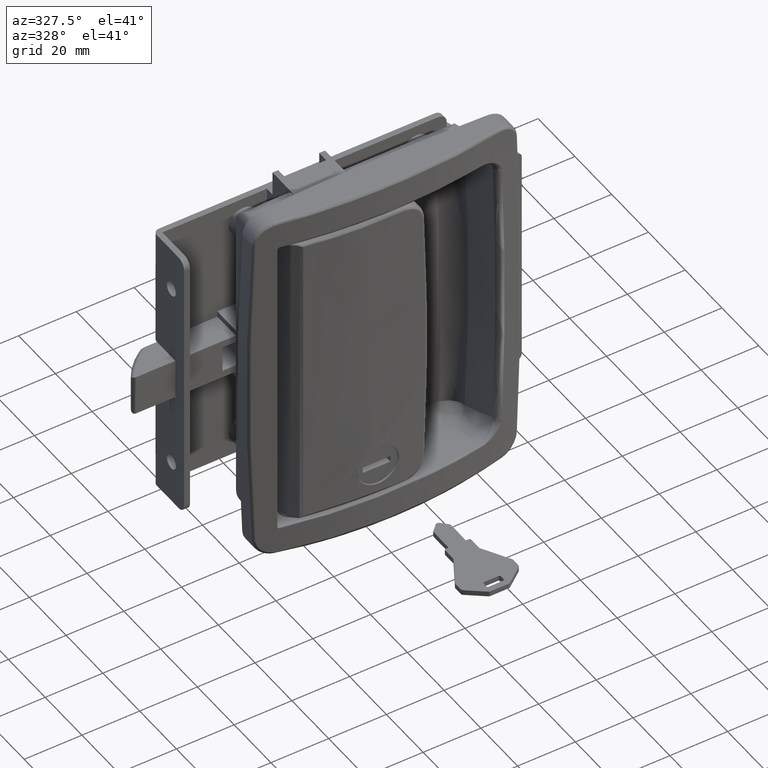
[diagram: clean part render]
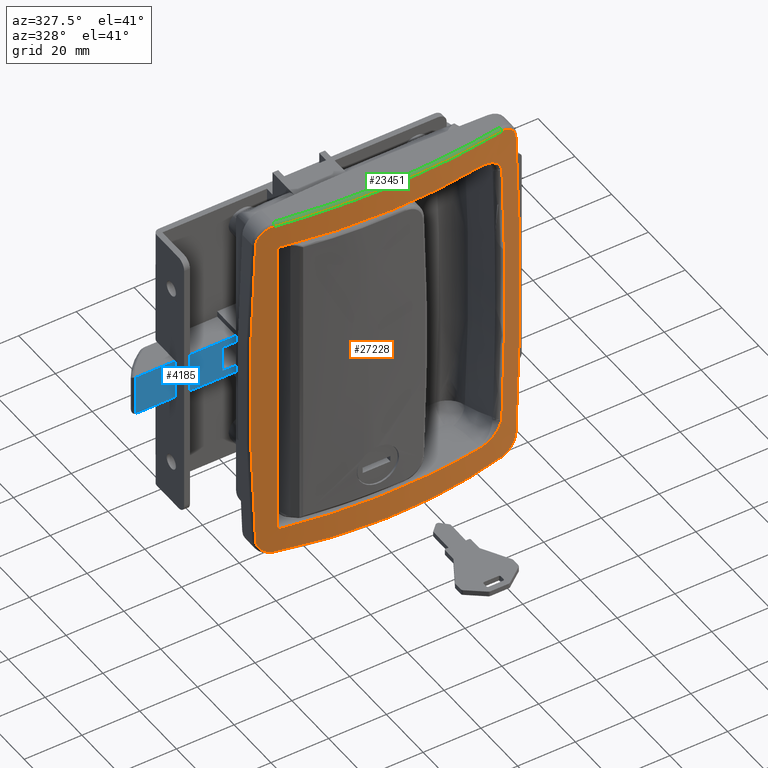
[diagram: same view with three faces highlighted in distinct colors, each labeled with its STEP entity id]
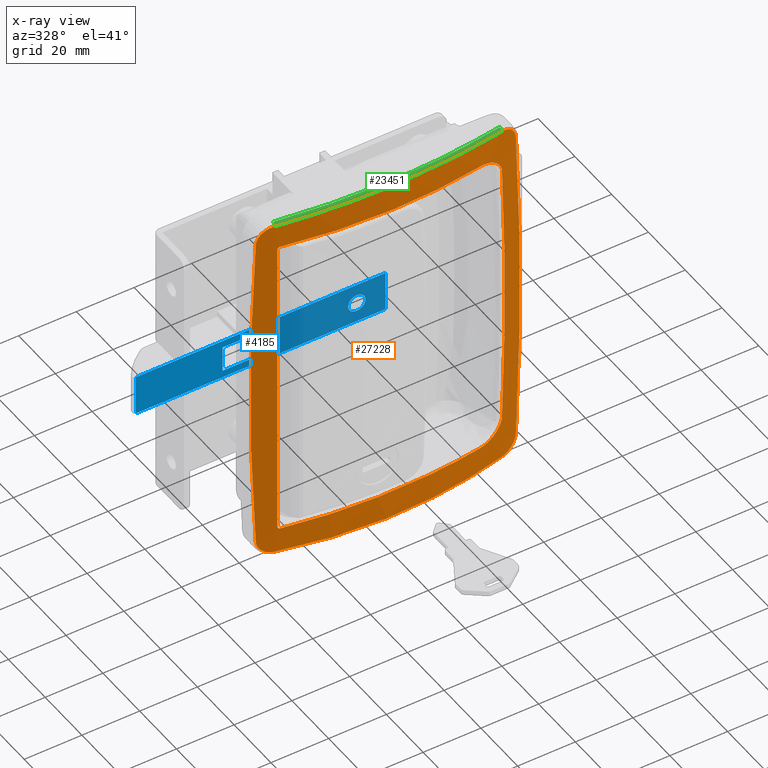
[diagram: x-ray of the same camera — body ghosted, the three highlighted faces saturated]
A machine part, auxiliary view with three faces highlighted in distinct colors.
The next image is the same camera in x-ray (body ghosted, the three faces saturated) — at least one of them is partly hidden behind the body in this view.
Their STEP definitions:

[orange] entity #27228 — the highlighted face is a freeform B-spline surface patch.
#21315=CARTESIAN_POINT('',(9.599075922486570,-6.702029921154320,-54.500000000000902));
#21316=VERTEX_POINT('',#21315);
#21317=CARTESIAN_POINT('',(8.999999999988750,-6.579965081214199,-53.583589882531903));
#21318=VERTEX_POINT('',#21317);
#21319=CARTESIAN_POINT('',(9.599075922486570,-6.702029921154320,-54.500000000000902));
#21320=CARTESIAN_POINT('',(9.566692796400959,-6.695476421284351,-54.475411583856307));
#21321=CARTESIAN_POINT('',(9.499483996925358,-6.681875113685147,-54.424380129431377));
#21322=CARTESIAN_POINT('',(9.404792877149061,-6.662649505394791,-54.332439576654721));
#21323=CARTESIAN_POINT('',(9.310166908435646,-6.643394465819999,-54.226429793515763));
#21324=CARTESIAN_POINT('',(9.214204128523051,-6.623818153537632,-54.102935523686106));
#21325=CARTESIAN_POINT('',(9.124598454653725,-6.605492644829222,-53.970241880236948));
#21326=CARTESIAN_POINT('',(9.054796662721941,-6.591189979142562,-53.833834482816357));
#21327=CARTESIAN_POINT('',(9.009322687428956,-6.581863360071954,-53.706281123828767));
#21328=CARTESIAN_POINT('',(9.002975536823840,-6.580570957867338,-53.622749439275943));
#21329=CARTESIAN_POINT('',(8.999999999988750,-6.579965081214199,-53.583589882531903));
#21330=B_SPLINE_CURVE_WITH_KNOTS('',3,(#21319,#21320,#21321,#21322,#21323,#21324,#21325,#21326,#21327,#21328,#21329),.UNSPECIFIED.,.F.,.U.,(4,1,1,1,1,1,1,1,4),(0.000000050481181,0.109058478817373,0.226342812403613,0.352712374429354,0.488854600462004,0.643843752490214,0.778844778220197,0.896322688775079,1.0),.UNSPECIFIED.);
#21331=EDGE_CURVE('',#21316,#21318,#21330,.T.);
#21516=CARTESIAN_POINT('',(8.999999999988750,-6.579965081214199,53.583589882528287));
#21517=VERTEX_POINT('',#21516);
#21518=CARTESIAN_POINT('',(9.599075922485369,-6.702029921151540,54.500000000000902));
#21519=VERTEX_POINT('',#21518);
#21520=CARTESIAN_POINT('',(8.999999999988750,-6.579965081214199,53.583589882528287));
#21521=CARTESIAN_POINT('',(9.001266810657866,-6.580221591940397,53.609230082111957));
#21522=CARTESIAN_POINT('',(9.003901980963725,-6.580755175581020,53.662565828507681));
#21523=CARTESIAN_POINT('',(9.023668971327792,-6.584806638629321,53.744079223000163));
#21524=CARTESIAN_POINT('',(9.054566728948615,-6.591141616838542,53.829640212636207));
#21525=CARTESIAN_POINT('',(9.097956137490129,-6.600033695094533,53.919296578469933));
#21526=CARTESIAN_POINT('',(9.153343960237335,-6.611372599447230,54.013143145252542));
#21527=CARTESIAN_POINT('',(9.234700174660173,-6.628003394400525,54.130848263186230));
#21528=CARTESIAN_POINT('',(9.339064712893963,-6.649284187424210,54.261888982053087));
#21529=CARTESIAN_POINT('',(9.464541667633382,-6.674796151140972,54.395485508702130));
#21530=CARTESIAN_POINT('',(9.555720059208518,-6.693253393494603,54.466318497744297));
#21531=CARTESIAN_POINT('',(9.599075922485369,-6.702029921151540,54.500000000000902));
#21532=B_SPLINE_CURVE_WITH_KNOTS('',3,(#21520,#21521,#21522,#21523,#21524,#21525,#21526,#21527,#21528,#21529,#21530,#21531),.UNSPECIFIED.,.F.,.U.,(4,1,1,1,1,1,1,1,1,4),(0.0,0.067887309138870,0.141216541310648,0.221320209355252,0.309223285366422,0.405702483639385,0.511345526070646,0.690605453808746,0.852881040407294,0.999999941705247),.UNSPECIFIED.);
#21533=EDGE_CURVE('',#21517,#21519,#21532,.T.);
#21660=CARTESIAN_POINT('',(78.269204066006097,-8.005596772646090,-54.500000000004398));
#21661=VERTEX_POINT('',#21660);
#21662=CARTESIAN_POINT('',(78.269204066006097,-8.005596772646090,-54.500000000004398));
#21663=CARTESIAN_POINT('',(71.169617046083673,-9.164456456189978,-54.500000000004079));
#21664=CARTESIAN_POINT('',(57.555875984851554,-10.602937384950851,-54.500000000003297));
#21665=CARTESIAN_POINT('',(34.506827224920620,-10.556137995763279,-54.500000000002167));
#21666=CARTESIAN_POINT('',(18.764673808468181,-8.558058871130950,-54.500000000001357));
#21667=CARTESIAN_POINT('',(9.599075922486570,-6.702029921154320,-54.500000000000902));
#21668=B_SPLINE_CURVE_WITH_KNOTS('',3,(#21662,#21663,#21664,#21665,#21666,#21667),.UNSPECIFIED.,.F.,.U.,(4,1,1,4),(3.980361E-009,21.580622754430149,41.003167980612282,69.057978517330241),.UNSPECIFIED.);
#21669=EDGE_CURVE('',#21661,#21316,#21668,.T.);
#21812=CARTESIAN_POINT('',(86.913000136790401,-6.389771469008990,-48.486246136743503));
#21813=VERTEX_POINT('',#21812);
#21814=CARTESIAN_POINT('',(86.913000136790401,-6.389771469008990,-48.486246136743503));
#21815=CARTESIAN_POINT('',(86.812504066507898,-6.410918498729897,-48.753279671610713));
#21816=CARTESIAN_POINT('',(86.634906128188220,-6.448289799592488,-49.225184878865250));
#21817=CARTESIAN_POINT('',(86.317330621516390,-6.514481829233340,-49.910956414097917));
#21818=CARTESIAN_POINT('',(85.945449519042384,-6.591344250926034,-50.530824343260029));
#21819=CARTESIAN_POINT('',(85.368872955608552,-6.709156392245324,-51.328776034403262));
#21820=CARTESIAN_POINT('',(84.531033032164245,-6.877315631739130,-52.218986659064882));
#21821=CARTESIAN_POINT('',(83.396023617967245,-7.098263442214736,-53.073477069571830));
#21822=CARTESIAN_POINT('',(82.162642814561579,-7.330171280076550,-53.729765243865842));
#21823=CARTESIAN_POINT('',(81.026822836001656,-7.535893966258069,-54.129573540935169));
#21824=CARTESIAN_POINT('',(80.012887499467652,-7.713343454385508,-54.358005303553291));
#21825=CARTESIAN_POINT('',(79.145842158132581,-7.861307618084020,-54.478069585884477));
#21826=CARTESIAN_POINT('',(78.562153889906540,-7.957379061370139,-54.492671421638640));
#21827=CARTESIAN_POINT('',(78.269204066006097,-8.005596772646090,-54.500000000004398));
#21828=B_SPLINE_CURVE_WITH_KNOTS('',3,(#21814,#21815,#21816,#21817,#21818,#21819,#21820,#21821,#21822,#21823,#21824,#21825,#21826,#21827),.UNSPECIFIED.,.F.,.U.,(4,1,1,1,1,1,1,1,1,1,1,4),(0.0,0.075408068428579,0.133262134585326,0.199719018594853,0.266687156634076,0.394405440116059,0.523308569708306,0.644028107572122,0.766438393185749,0.844104949045801,0.921757160096916,1.0),.UNSPECIFIED.);
#21829=EDGE_CURVE('',#21813,#21661,#21828,.T.);
#21879=CARTESIAN_POINT('',(86.913023108328701,-6.389840579438331,48.486076372476198));
#21880=VERTEX_POINT('',#21879);
#21933=CARTESIAN_POINT('',(86.913023108328701,-6.389840579438331,48.486076372476198));
#21934=CARTESIAN_POINT('',(86.983031256800231,-6.375052075943834,46.946898579708581));
#21935=CARTESIAN_POINT('',(87.123033796963725,-6.345477974933458,43.868845446531552));
#21936=CARTESIAN_POINT('',(87.306938744599620,-6.306361321573832,39.251011629688250));
#21937=CARTESIAN_POINT('',(87.471723997029883,-6.271169693701984,34.633249690084767));
#21938=CARTESIAN_POINT('',(87.615529008390126,-6.240328501856268,30.015468411828760));
#21939=CARTESIAN_POINT('',(87.738865356182174,-6.213785867121910,25.397692237409931));
#21940=CARTESIAN_POINT('',(87.841607405666807,-6.191609145401666,20.779914626427530));
#21941=CARTESIAN_POINT('',(87.923798435353135,-6.173825133935552,16.162137338543442));
#21942=CARTESIAN_POINT('',(87.985434657309284,-6.160462884049864,11.544359909837450));
#21943=CARTESIAN_POINT('',(88.026523057046148,-6.151542236127284,6.926582472176312));
#21944=CARTESIAN_POINT('',(88.047065887769449,-6.147076893423654,2.308804997608575));
#21945=CARTESIAN_POINT('',(88.047064794320406,-6.147073604739222,-2.308972498233349));
#21946=CARTESIAN_POINT('',(88.026519776671094,-6.151532369949367,-6.926750014240376));
#21947=CARTESIAN_POINT('',(87.985429189927601,-6.160446440003634,-11.544527534776501));
#21948=CARTESIAN_POINT('',(87.923790780828568,-6.173802111396670,-16.162305087795691));
#21949=CARTESIAN_POINT('',(87.841597563811931,-6.191579543495204,-20.780082541433099));
#21950=CARTESIAN_POINT('',(87.738853326753784,-6.213749684724121,-25.397860359611720));
#21951=CARTESIAN_POINT('',(87.615514791097809,-6.240285737589986,-30.015636782656848));
#21952=CARTESIAN_POINT('',(87.471707591510821,-6.271120345951877,-34.633418350995171));
#21953=CARTESIAN_POINT('',(87.306920150513207,-6.306305388429468,-39.251180622056303));
#21954=CARTESIAN_POINT('',(87.123013013678062,-6.345415454394025,-43.869014812033470));
#21955=CARTESIAN_POINT('',(86.983009014953169,-6.374985162240638,-46.947068206078733));
#21956=CARTESIAN_POINT('',(86.913000136790401,-6.389771469008990,-48.486246136743503));
#21957=B_SPLINE_CURVE_WITH_KNOTS('',3,(#21933,#21934,#21935,#21936,#21937,#21938,#21939,#21940,#21941,#21942,#21943,#21944,#21945,#21946,#21947,#21948,#21949,#21950,#21951,#21952,#21953,#21954,#21955,#21956),.UNSPECIFIED.,.F.,.U.,(4,1,1,1,1,1,1,1,1,1,1,1,1,1,1,1,1,1,1,1,1,4),(0.0,0.047650267292932,0.095291171186925,0.142923695766729,0.190548825636918,0.238167545860451,0.285780841898298,0.333389699548615,0.380995104885082,0.428598044195851,0.476199503922608,0.523800470599006,0.571401930789286,0.619004871027037,0.666610277753814,0.714219137257865,0.761832435612718,0.809451158616276,0.857076291729262,0.904708820014765,0.952349728076834,1.0),.UNSPECIFIED.);
#21958=EDGE_CURVE('',#21880,#21813,#21957,.T.);
#22091=CARTESIAN_POINT('',(78.269565752512392,-8.005537741808510,54.500000000000902));
#22092=VERTEX_POINT('',#22091);
#22093=CARTESIAN_POINT('',(78.269565752512392,-8.005537741808510,54.500000000000902));
#22094=CARTESIAN_POINT('',(78.415851169739810,-7.981562243196351,54.498162573241402));
#22095=CARTESIAN_POINT('',(78.707680419239111,-7.933732788292577,54.494497034444713));
#22096=CARTESIAN_POINT('',(79.143560201483055,-7.860975056955176,54.464688181987128));
#22097=CARTESIAN_POINT('',(79.576243651786314,-7.787799646853626,54.417040890958191));
#22098=CARTESIAN_POINT('',(80.005705988256068,-7.714137736919426,54.349843552363538));
#22099=CARTESIAN_POINT('',(80.431971967378232,-7.640031097275867,54.263527947951232));
#22100=CARTESIAN_POINT('',(81.157895409064011,-7.512141372174989,54.082548022253363));
#22101=CARTESIAN_POINT('',(82.157169991319492,-7.331216442941176,53.732436299353417));
#22102=CARTESIAN_POINT('',(83.391691090599323,-7.099127521089654,53.077288901614679));
#22103=CARTESIAN_POINT('',(84.527995946639606,-6.877964297202154,52.223180024258333));
#22104=CARTESIAN_POINT('',(85.366752253773072,-6.709640115501778,51.332624982232019));
#22105=CARTESIAN_POINT('',(85.944261879732778,-6.591648968604700,50.533778200766307));
#22106=CARTESIAN_POINT('',(86.316688814714922,-6.514680215281693,49.913040184106329));
#22107=CARTESIAN_POINT('',(86.634778486282684,-6.448386113369507,49.226150463433036));
#22108=CARTESIAN_POINT('',(86.812485628229226,-6.410994700620705,48.753485617590293));
#22109=CARTESIAN_POINT('',(86.913023108328701,-6.389840579438331,48.486076372476198));
#22110=B_SPLINE_CURVE_WITH_KNOTS('',3,(#22093,#22094,#22095,#22096,#22097,#22098,#22099,#22100,#22101,#22102,#22103,#22104,#22105,#22106,#22107,#22108,#22109),.UNSPECIFIED.,.F.,.U.,(4,1,1,1,1,1,1,1,1,1,1,1,1,1,4),(0.0,0.039073092025849,0.077948105406803,0.116699111998369,0.155400895677523,0.194128525473677,0.232956920507578,0.355444541376623,0.476179403716721,0.605089647461640,0.732966234705364,0.799971904446540,0.866551054056160,0.924501509745595,0.999999998166755),.UNSPECIFIED.);
#22111=EDGE_CURVE('',#22092,#21880,#22110,.T.);
#22153=CARTESIAN_POINT('',(9.599075922485369,-6.702029921151540,54.500000000000902));
#22154=CARTESIAN_POINT('',(20.174801872159708,-8.843850856919962,54.500000000000853));
#22155=CARTESIAN_POINT('',(37.207747262162549,-10.810101128810491,54.500000000001172));
#22156=CARTESIAN_POINT('',(60.251123293470911,-10.368327785756680,54.500000000000632));
#22157=CARTESIAN_POINT('',(72.412371867487352,-8.961548579779381,54.500000000000909));
#22158=CARTESIAN_POINT('',(78.269565752512392,-8.005537741808510,54.500000000000902));
#22159=B_SPLINE_CURVE_WITH_KNOTS('',3,(#22153,#22154,#22155,#22156,#22157,#22158),.UNSPECIFIED.,.F.,.U.,(4,1,1,4),(3.981711E-009,32.371117432586068,51.254236992192382,69.058341257331094),.UNSPECIFIED.);
#22160=EDGE_CURVE('',#21519,#22092,#22159,.T.);
#22967=CARTESIAN_POINT('',(8.999999999988750,-6.579965081214199,53.583589882528287));
#22968=CARTESIAN_POINT('',(8.999999999988750,-6.579965081214199,-53.583589882531903));
#22969=QUASI_UNIFORM_CURVE('',1,(#22967,#22968),.UNSPECIFIED.,.F.,.U.);
#22970=EDGE_CURVE('',#21517,#21318,#22969,.T.);
#23146=CARTESIAN_POINT('',(8.116304584437071,-6.395948424689160,62.974679974785403));
#23147=VERTEX_POINT('',#23146);
#23173=CARTESIAN_POINT('',(2.410158466231205,-5.102077315707499,57.327200999845502));
#23174=VERTEX_POINT('',#23173);
#23184=CARTESIAN_POINT('',(8.116304584437071,-6.395948424689160,62.974679974785403));
#23185=CARTESIAN_POINT('',(7.933610205174554,-6.357454396922718,62.965160878504221));
#23186=CARTESIAN_POINT('',(7.751905064017108,-6.318889074342521,62.947419324453953));
#23187=CARTESIAN_POINT('',(7.390459039234408,-6.241629823303031,62.895586193570892));
#23188=CARTESIAN_POINT('',(7.210364710094065,-6.202857657790051,62.861360220339158));
#23189=CARTESIAN_POINT('',(6.680006537358518,-6.087895798484737,62.735633451661613));
#23190=CARTESIAN_POINT('',(6.337423657929779,-6.012586113724737,62.621096182091442));
#23191=CARTESIAN_POINT('',(5.839829049518839,-5.901852510773392,62.403626733651969));
#23192=CARTESIAN_POINT('',(5.676693514460721,-5.865316392517995,62.323480671678610));
#23193=CARTESIAN_POINT('',(5.436211069456573,-5.811137031607039,62.191394489118608));
#23194=CARTESIAN_POINT('',(5.356691402344356,-5.793166973236545,62.145332814629612));
#23195=CARTESIAN_POINT('',(5.200619042339138,-5.757795447298503,62.050123694693781));
#23196=CARTESIAN_POINT('',(5.123872224251511,-5.740350369375516,62.000875182263933));
#23197=CARTESIAN_POINT('',(4.746503360132579,-5.654334635559104,61.746510839112382));
#23198=CARTESIAN_POINT('',(4.464819106461061,-5.589359602251310,61.517232062303812));
#23199=CARTESIAN_POINT('',(4.138270457990378,-5.513366949420901,61.197920358240133));
#23200=CARTESIAN_POINT('',(4.074248513631530,-5.498431858984343,61.132409589461403));
#23201=CARTESIAN_POINT('',(3.948828950334795,-5.469108370642827,60.998026019121248));
#23202=CARTESIAN_POINT('',(3.887280108422647,-5.454684407658792,60.928970391800277));
#23203=CARTESIAN_POINT('',(3.708005207047736,-5.412582252603105,60.718225547838607));
#23204=CARTESIAN_POINT('',(3.595645748878357,-5.386073925819027,60.573061169018636));
#23205=CARTESIAN_POINT('',(3.279585752142856,-5.311243061312776,60.123843343146042));
#23206=CARTESIAN_POINT('',(3.096723009473663,-5.267575508666848,59.806182947378247));
#23207=CARTESIAN_POINT('',(2.904148015050446,-5.221381367202053,59.385546278084647));
#23208=CARTESIAN_POINT('',(2.867380060188119,-5.212548916965713,59.300061113355881));
#23209=CARTESIAN_POINT('',(2.797878553639748,-5.195833616680215,59.127442964881517));
#23210=CARTESIAN_POINT('',(2.765259914337382,-5.187978473120289,59.040620405935641));
#23211=CARTESIAN_POINT('',(2.673693590764316,-5.165905460811786,58.778637429583299));
#23212=CARTESIAN_POINT('',(2.621022265580308,-5.153177268954157,58.601964879348209));
#23213=CARTESIAN_POINT('',(2.487774767613481,-5.120936481656962,58.065976752628202));
#23214=CARTESIAN_POINT('',(2.431742452319590,-5.107320302734230,57.700744033906247));
#23215=CARTESIAN_POINT('',(2.410158466231205,-5.102077315707499,57.327200999845502));
#23216=B_SPLINE_CURVE_WITH_KNOTS('',3,(#23184,#23185,#23186,#23187,#23188,#23189,#23190,#23191,#23192,#23193,#23194,#23195,#23196,#23197,#23198,#23199,#23200,#23201,#23202,#23203,#23204,#23205,#23206,#23207,#23208,#23209,#23210,#23211,#23212,#23213,#23214,#23215),.UNSPECIFIED.,.F.,.U.,(4,2,2,2,2,2,2,2,2,2,2,2,2,2,2,4),(0.0,0.062499999999998,0.124999999999996,0.249999999999991,0.312499999999989,0.343749999999988,0.374999999999988,0.499999999999989,0.531249999999989,0.562499999999990,0.624999999999992,0.749999999999995,0.781249999999996,0.812499999999997,0.874999999999999,1.0),.UNSPECIFIED.);
#23217=EDGE_CURVE('',#23147,#23174,#23216,.T.);
#23282=CARTESIAN_POINT('',(2.410158466233965,-5.102077315708200,-57.327200999877299));
#23283=VERTEX_POINT('',#23282);
#23293=CARTESIAN_POINT('',(2.410158466231205,-5.102077315707499,57.327200999845502));
#23294=CARTESIAN_POINT('',(1.858080394009946,-4.967971494913728,47.772667499868597));
#23295=CARTESIAN_POINT('',(1.030817365872856,-4.762127975385025,28.663600499914789));
#23296=CARTESIAN_POINT('',(0.617526302262452,-4.657329702733519,-1.591435E-011));
#23297=CARTESIAN_POINT('',(1.030817647770544,-4.762128571359698,-28.663600499946501));
#23298=CARTESIAN_POINT('',(1.858080394011436,-4.967971494914089,-47.772667499900507));
#23299=CARTESIAN_POINT('',(2.410158466233965,-5.102077315708200,-57.327200999877299));
#23300=B_SPLINE_CURVE_WITH_KNOTS('',3,(#23293,#23294,#23295,#23296,#23297,#23298,#23299),.UNSPECIFIED.,.F.,.U.,(4,1,1,1,4),(0.0,0.250000000000000,0.500000000000000,0.750000000000000,1.0),.UNSPECIFIED.);
#23301=EDGE_CURVE('',#23174,#23283,#23300,.T.);
#23415=CARTESIAN_POINT('',(86.883695415598211,-6.395948424676350,62.974679974594203));
#23416=VERTEX_POINT('',#23415);
#23439=CARTESIAN_POINT('',(86.883695415598211,-6.395948424676350,62.974679974594203));
#23440=CARTESIAN_POINT('',(79.006419311321935,-8.057140599204137,63.389693519400439));
#23441=CARTESIAN_POINT('',(66.510625642513233,-9.873956151876685,63.843586256406340));
#23442=CARTESIAN_POINT('',(48.122255099959673,-10.709655305157760,64.052367921387514));
#23443=CARTESIAN_POINT('',(29.718472010577269,-10.052696326575720,63.888240688796003));
#23444=CARTESIAN_POINT('',(15.993574537155171,-8.057153468290224,63.389696734618262));
#23445=CARTESIAN_POINT('',(8.116304584437071,-6.395948424689160,62.974679974785403));
#23446=B_SPLINE_CURVE_WITH_KNOTS('',3,(#23439,#23440,#23441,#23442,#23443,#23444,#23445),.UNSPECIFIED.,.F.,.U.,(4,1,1,1,4),(6.040082E-009,24.183615626411939,37.825655670220847,55.188238485434738,79.371854105809931),.UNSPECIFIED.);
#23447=EDGE_CURVE('',#23416,#23147,#23446,.T.);
#23618=CARTESIAN_POINT('',(8.116304584421840,-6.395948424685960,-62.974679974820987));
#23619=VERTEX_POINT('',#23618);
#23629=CARTESIAN_POINT('',(2.410158466233965,-5.102077315708200,-57.327200999877299));
#23630=CARTESIAN_POINT('',(2.420958292790923,-5.104700712067749,-57.514108087526253));
#23631=CARTESIAN_POINT('',(2.440537094386081,-5.109456262041484,-57.700258174244723));
#23632=CARTESIAN_POINT('',(2.497044438856683,-5.123163616115249,-58.069853357606149));
#23633=CARTESIAN_POINT('',(2.533712658154287,-5.132052157524200,-58.251730897679757));
#23634=CARTESIAN_POINT('',(2.668001777871544,-5.164543546182856,-58.788939922970677));
#23635=CARTESIAN_POINT('',(2.789708974679909,-5.193931001788743,-59.135916047200887));
#23636=CARTESIAN_POINT('',(2.982084926067977,-5.240076360682831,-59.555696582230283));
#23637=CARTESIAN_POINT('',(3.022588247290079,-5.249779322521205,-59.638950186898988));
#23638=CARTESIAN_POINT('',(3.107717459813700,-5.270140434565059,-59.804030062248579));
#23639=CARTESIAN_POINT('',(3.152270427446619,-5.280781023316412,-59.885687403710762));
#23640=CARTESIAN_POINT('',(3.290644260681233,-5.313772233384963,-60.125926667031102));
#23641=CARTESIAN_POINT('',(3.389589174016548,-5.337290408729828,-60.280616062684608));
#23642=CARTESIAN_POINT('',(3.705857091690987,-5.412162021091043,-60.728827500397372));
#23643=CARTESIAN_POINT('',(3.942454653674136,-5.467799957205791,-61.006621737443467));
#23644=CARTESIAN_POINT('',(4.270726081596934,-5.544190751681683,-61.327395496671812));
#23645=CARTESIAN_POINT('',(4.338186745584192,-5.559852438684898,-61.390363054805363));
#23646=CARTESIAN_POINT('',(4.475595928358209,-5.591671338098515,-61.512833285546378));
#23647=CARTESIAN_POINT('',(4.545415494859383,-5.607798887783911,-61.572237269619272));
#23648=CARTESIAN_POINT('',(4.758146599769678,-5.656807418394500,-61.745080006339933));
#23649=CARTESIAN_POINT('',(4.904323729636667,-5.690312773515876,-61.853160796342308));
#23650=CARTESIAN_POINT('',(5.355608892518053,-5.793160455423248,-62.156515768855328));
#23651=CARTESIAN_POINT('',(5.673366306084984,-5.864813462369620,-62.331074182934493));
#23652=CARTESIAN_POINT('',(6.092237715774686,-5.958021649252252,-62.513889102356792));
#23653=CARTESIAN_POINT('',(6.177164417178156,-5.976860045984575,-62.548679234880538));
#23654=CARTESIAN_POINT('',(6.347510347050389,-6.014522489027796,-62.614000761275847));
#23655=CARTESIAN_POINT('',(6.433136423191072,-6.033392695274585,-62.644627306119610));
#23656=CARTESIAN_POINT('',(6.691352285961580,-6.090109814012084,-62.730509891018038));
#23657=CARTESIAN_POINT('',(6.865277077538916,-6.128062655518222,-62.779781014709641));
#23658=CARTESIAN_POINT('',(7.392320494552514,-6.242284187153496,-62.904025432154533));
#23659=CARTESIAN_POINT('',(7.750664843034016,-6.318907486621408,-62.955628705061741));
#23660=CARTESIAN_POINT('',(8.116304584421842,-6.395948424685960,-62.974679974821093));
#23661=B_SPLINE_CURVE_WITH_KNOTS('',3,(#23629,#23630,#23631,#23632,#23633,#23634,#23635,#23636,#23637,#23638,#23639,#23640,#23641,#23642,#23643,#23644,#23645,#23646,#23647,#23648,#23649,#23650,#23651,#23652,#23653,#23654,#23655,#23656,#23657,#23658,#23659,#23660),.UNSPECIFIED.,.F.,.U.,(4,2,2,2,2,2,2,2,2,2,2,2,2,2,2,4),(0.0,0.062499999999996,0.124999999999992,0.249999999999984,0.281249999999984,0.312499999999984,0.374999999999985,0.499999999999988,0.531249999999989,0.562499999999991,0.624999999999993,0.749999999999996,0.781249999999995,0.812499999999995,0.874999999999997,1.0),.UNSPECIFIED.);
#23662=EDGE_CURVE('',#23283,#23619,#23661,.T.);
#23844=CARTESIAN_POINT('',(92.589841533773708,-5.102077315700139,57.327200999655702));
#23845=VERTEX_POINT('',#23844);
#23870=CARTESIAN_POINT('',(92.589841533773708,-5.102077315700139,57.327200999655702));
#23871=CARTESIAN_POINT('',(92.579041707216660,-5.104700712059723,57.514108087304287));
#23872=CARTESIAN_POINT('',(92.559462905621359,-5.109456262033433,57.700258174022508));
#23873=CARTESIAN_POINT('',(92.502955561150685,-5.123163616107236,58.069853357383053));
#23874=CARTESIAN_POINT('',(92.466287341853032,-5.132052157516220,58.251730897456213));
#23875=CARTESIAN_POINT('',(92.331998222135852,-5.164543546174889,58.788939922745982));
#23876=CARTESIAN_POINT('',(92.210291025327621,-5.193931001780766,59.135916046975517));
#23877=CARTESIAN_POINT('',(92.017915073939832,-5.240076360674822,59.555696582004202));
#23878=CARTESIAN_POINT('',(91.977411752717799,-5.249779322513189,59.638950186672773));
#23879=CARTESIAN_POINT('',(91.892282540194358,-5.270140434557031,59.804030062022107));
#23880=CARTESIAN_POINT('',(91.847729572561519,-5.280781023308315,59.885687403484113));
#23881=CARTESIAN_POINT('',(91.709355739327208,-5.313772233376812,60.125926666803927));
#23882=CARTESIAN_POINT('',(91.610410825992119,-5.337290408721702,60.280616062457149));
#23883=CARTESIAN_POINT('',(91.294142908318463,-5.412162021082800,60.728827500169132));
#23884=CARTESIAN_POINT('',(91.057545346335857,-5.467799957197448,61.006621737214807));
#23885=CARTESIAN_POINT('',(90.729273918413867,-5.544190751673230,61.327395496442811));
#23886=CARTESIAN_POINT('',(90.661813254426747,-5.559852438676402,61.390363054576333));
#23887=CARTESIAN_POINT('',(90.524404071653080,-5.591671338089959,61.512833285317157));
#23888=CARTESIAN_POINT('',(90.454584505152127,-5.607798887775335,61.572237269390023));
#23889=CARTESIAN_POINT('',(90.241853400242377,-5.656807418385835,61.745080006110477));
#23890=CARTESIAN_POINT('',(90.095676270375748,-5.690312773507182,61.853160796112768));
#23891=CARTESIAN_POINT('',(89.644391107495551,-5.793160455414389,62.156515768625638));
#23892=CARTESIAN_POINT('',(89.326633693929395,-5.864813462360638,62.331074182704832));
#23893=CARTESIAN_POINT('',(88.907762284240704,-5.958021649243145,62.513889102127322));
#23894=CARTESIAN_POINT('',(88.822835582837456,-5.976860045975442,62.548679234651168));
#23895=CARTESIAN_POINT('',(88.652489652965642,-6.014522489018611,62.614000761046562));
#23896=CARTESIAN_POINT('',(88.566863576825170,-6.033392695265371,62.644627305890403));
#23897=CARTESIAN_POINT('',(88.308647714055269,-6.090109814002792,62.730509890789037));
#23898=CARTESIAN_POINT('',(88.134722922478389,-6.128062655508864,62.779781014480839));
#23899=CARTESIAN_POINT('',(87.607679505465967,-6.242284187144004,62.904025431926371));
#23900=CARTESIAN_POINT('',(87.249335156985282,-6.318907486611896,62.955628704834197));
#23901=CARTESIAN_POINT('',(86.883695415598211,-6.395948424676380,62.974679974594203));
#23902=B_SPLINE_CURVE_WITH_KNOTS('',3,(#23870,#23871,#23872,#23873,#23874,#23875,#23876,#23877,#23878,#23879,#23880,#23881,#23882,#23883,#23884,#23885,#23886,#23887,#23888,#23889,#23890,#23891,#23892,#23893,#23894,#23895,#23896,#23897,#23898,#23899,#23900,#23901),.UNSPECIFIED.,.F.,.U.,(4,2,2,2,2,2,2,2,2,2,2,2,2,2,2,4),(0.0,0.062499999999999,0.124999999999998,0.249999999999995,0.281249999999995,0.312499999999994,0.374999999999993,0.499999999999993,0.531249999999992,0.562499999999992,0.624999999999991,0.749999999999994,0.781249999999996,0.812499999999998,0.875000000000000,1.0),.UNSPECIFIED.);
#23903=EDGE_CURVE('',#23845,#23416,#23902,.T.);
#24008=CARTESIAN_POINT('',(86.883695415582707,-6.395948424679641,-62.974679974856301));
#24009=VERTEX_POINT('',#24008);
#24020=CARTESIAN_POINT('',(8.116304584421840,-6.395948424685960,-62.974679974820987));
#24021=CARTESIAN_POINT('',(15.993575025337710,-8.057147569729674,-63.389695261047358));
#24022=CARTESIAN_POINT('',(29.718471218248290,-10.052708238964270,-63.888243664950942));
#24023=CARTESIAN_POINT('',(48.122255457287253,-10.709646129061751,-64.052365629086069));
#24024=CARTESIAN_POINT('',(66.510625412752333,-9.873962911506350,-63.843587945359012));
#24025=CARTESIAN_POINT('',(79.006419253490876,-8.057138264816620,-63.389692936442103));
#24026=CARTESIAN_POINT('',(86.883695415582707,-6.395948424679641,-62.974679974856301));
#24027=B_SPLINE_CURVE_WITH_KNOTS('',3,(#24020,#24021,#24022,#24023,#24024,#24025,#24026),.UNSPECIFIED.,.F.,.U.,(4,1,1,1,4),(6.036274E-009,24.183615626410301,41.546198441624433,55.188238485435321,79.371854105809618),.UNSPECIFIED.);
#24028=EDGE_CURVE('',#23619,#24009,#24027,.T.);
#24102=CARTESIAN_POINT('',(92.589841533775498,-5.102077315699700,-57.327200999916101));
#24103=VERTEX_POINT('',#24102);
#24126=CARTESIAN_POINT('',(92.589841533775498,-5.102077315699700,-57.327200999916101));
#24127=CARTESIAN_POINT('',(93.141919605995284,-4.967971494906189,-47.772667499951787));
#24128=CARTESIAN_POINT('',(93.969182634128273,-4.762127975378308,-28.663600500023129));
#24129=CARTESIAN_POINT('',(94.382473697737325,-4.657329702727048,-1.301820E-010));
#24130=CARTESIAN_POINT('',(93.969182352227961,-4.762128571353602,28.663600499762872));
#24131=CARTESIAN_POINT('',(93.141919605993621,-4.967971494906577,47.772667499691302));
#24132=CARTESIAN_POINT('',(92.589841533773708,-5.102077315700139,57.327200999655702));
#24133=B_SPLINE_CURVE_WITH_KNOTS('',3,(#24126,#24127,#24128,#24129,#24130,#24131,#24132),.UNSPECIFIED.,.F.,.U.,(4,1,1,1,4),(0.0,0.250000000000000,0.500000000000000,0.750000000000000,1.0),.UNSPECIFIED.);
#24134=EDGE_CURVE('',#24103,#23845,#24133,.T.);
#24281=CARTESIAN_POINT('',(86.883695415582707,-6.395948424679641,-62.974679974856301));
#24282=CARTESIAN_POINT('',(87.066389794844966,-6.357454396913210,-62.965160878574373));
#24283=CARTESIAN_POINT('',(87.248094936002090,-6.318889074332979,-62.947419324523857));
#24284=CARTESIAN_POINT('',(87.609540960784244,-6.241629823293518,-62.895586193640227));
#24285=CARTESIAN_POINT('',(87.789635289924234,-6.202857657780571,-62.861360220408208));
#24286=CARTESIAN_POINT('',(88.319993462658744,-6.087895798475346,-62.735633451729960));
#24287=CARTESIAN_POINT('',(88.662576342086837,-6.012586113715424,-62.621096182159363));
#24288=CARTESIAN_POINT('',(89.160170950496848,-5.901852510764176,-62.403626733719463));
#24289=CARTESIAN_POINT('',(89.323306485554653,-5.865316392508800,-62.323480671745941));
#24290=CARTESIAN_POINT('',(89.563788930558331,-5.811137031597891,-62.191394489185761));
#24291=CARTESIAN_POINT('',(89.643308597670384,-5.793166973227423,-62.145332814696708));
#24292=CARTESIAN_POINT('',(89.799380957675226,-5.757795447289423,-62.050123694760842));
#24293=CARTESIAN_POINT('',(89.876127775762697,-5.740350369366444,-62.000875182330951));
#24294=CARTESIAN_POINT('',(90.253496639880808,-5.654334635550140,-61.746510839179258));
#24295=CARTESIAN_POINT('',(90.535180893551725,-5.589359602242453,-61.517232062370717));
#24296=CARTESIAN_POINT('',(90.861729542021649,-5.513366949412143,-61.197920358307087));
#24297=CARTESIAN_POINT('',(90.925751486380349,-5.498431858975580,-61.132409589528372));
#24298=CARTESIAN_POINT('',(91.051171049676810,-5.469108370634102,-60.998026019188281));
#24299=CARTESIAN_POINT('',(91.112719891588810,-5.454684407650116,-60.928970391867303));
#24300=CARTESIAN_POINT('',(91.291994792963322,-5.412582252594495,-60.718225547905803));
#24301=CARTESIAN_POINT('',(91.404354251132418,-5.386073925810438,-60.573061169085911));
#24302=CARTESIAN_POINT('',(91.720414247867126,-5.311243061304304,-60.123843343213693));
#24303=CARTESIAN_POINT('',(91.903276990535886,-5.267575508658423,-59.806182947446189));
#24304=CARTESIAN_POINT('',(92.095851984958614,-5.221381367193700,-59.385546278153001));
#24305=CARTESIAN_POINT('',(92.132619939820870,-5.212548916957378,-59.300061113424292));
#24306=CARTESIAN_POINT('',(92.202121446369063,-5.195833616671908,-59.127442964950141));
#24307=CARTESIAN_POINT('',(92.234740085671334,-5.187978473112045,-59.040620406004336));
#24308=CARTESIAN_POINT('',(92.326306409244168,-5.165905460803581,-58.778637429652342));
#24309=CARTESIAN_POINT('',(92.378977734428020,-5.153177268945921,-58.601964879417451));
#24310=CARTESIAN_POINT('',(92.512225232394584,-5.120936481648782,-58.065976752698113));
#24311=CARTESIAN_POINT('',(92.568257547688276,-5.107320302726097,-57.700744033976441));
#24312=CARTESIAN_POINT('',(92.589841533775498,-5.102077315699700,-57.327200999916101));
#24313=B_SPLINE_CURVE_WITH_KNOTS('',3,(#24281,#24282,#24283,#24284,#24285,#24286,#24287,#24288,#24289,#24290,#24291,#24292,#24293,#24294,#24295,#24296,#24297,#24298,#24299,#24300,#24301,#24302,#24303,#24304,#24305,#24306,#24307,#24308,#24309,#24310,#24311,#24312),.UNSPECIFIED.,.F.,.U.,(4,2,2,2,2,2,2,2,2,2,2,2,2,2,2,4),(0.0,0.062499999999997,0.124999999999995,0.249999999999990,0.312499999999988,0.343749999999987,0.374999999999986,0.499999999999987,0.531249999999985,0.562499999999984,0.624999999999985,0.749999999999989,0.781249999999990,0.812499999999991,0.874999999999993,1.0),.UNSPECIFIED.);
#24314=EDGE_CURVE('',#24009,#24103,#24313,.T.);
#27194=CARTESIAN_POINT('',(-3.747000661607919,-3.497382315421132,67.199989268033647));
#27195=CARTESIAN_POINT('',(-3.747000661607919,-3.497382315421132,-67.279989255406605));
#27196=CARTESIAN_POINT('',(47.504383551001965,-17.770315630156912,67.199989268033647));
#27197=CARTESIAN_POINT('',(47.504383551001965,-17.770315630156912,-67.279989255406619));
#27198=CARTESIAN_POINT('',(98.755136660326016,-3.495116337587908,67.199989268033647));
#27199=CARTESIAN_POINT('',(98.755136660326016,-3.495116337587908,-67.279989255406619));
#27207=(BOUNDED_SURFACE()B_SPLINE_SURFACE(1,2,((#27194,#27196,#27198),(#27195,#27197,#27199)),.UNSPECIFIED.,.F.,.F.,.U.)B_SPLINE_SURFACE_WITH_KNOTS((2,2),(3,3),(0.0,134.479978523440310),(0.0,104.416318382653000),.UNSPECIFIED.)GEOMETRIC_REPRESENTATION_ITEM()RATIONAL_B_SPLINE_SURFACE(((0.997375335803823,0.959897334753576,0.995488243061933),(0.997375335803823,0.959897334753576,0.995488243061933)))REPRESENTATION_ITEM('')SURFACE());
#27208=ORIENTED_EDGE('',*,*,#23447,.T.);
#27209=ORIENTED_EDGE('',*,*,#23217,.T.);
#27210=ORIENTED_EDGE('',*,*,#23301,.T.);
#27211=ORIENTED_EDGE('',*,*,#23662,.T.);
#27212=ORIENTED_EDGE('',*,*,#24028,.T.);
#27213=ORIENTED_EDGE('',*,*,#24314,.T.);
#27214=ORIENTED_EDGE('',*,*,#24134,.T.);
#27215=ORIENTED_EDGE('',*,*,#23903,.T.);
#27216=EDGE_LOOP('',(#27208,#27209,#27210,#27211,#27212,#27213,#27214,#27215));
#27217=FACE_OUTER_BOUND('',#27216,.T.);
#27218=ORIENTED_EDGE('',*,*,#21669,.T.);
#27219=ORIENTED_EDGE('',*,*,#21331,.T.);
#27220=ORIENTED_EDGE('',*,*,#22970,.F.);
#27221=ORIENTED_EDGE('',*,*,#21533,.T.);
#27222=ORIENTED_EDGE('',*,*,#22160,.T.);
#27223=ORIENTED_EDGE('',*,*,#22111,.T.);
#27224=ORIENTED_EDGE('',*,*,#21958,.T.);
#27225=ORIENTED_EDGE('',*,*,#21829,.T.);
#27226=EDGE_LOOP('',(#27218,#27219,#27220,#27221,#27222,#27223,#27224,#27225));
#27227=FACE_BOUND('',#27226,.T.);
#27228=ADVANCED_FACE('',(#27217,#27227),#27207,.T.);

[blue] entity #4185 — the highlighted face is a freeform B-spline surface patch.
#3280=CARTESIAN_POINT('',(51.290666948191600,12.999999999967921,1.937226131400759));
#3281=VERTEX_POINT('',#3280);
#3287=CARTESIAN_POINT('',(49.000000000152497,12.999999999967921,3.0));
#3288=VERTEX_POINT('',#3287);
#3289=CARTESIAN_POINT('',(51.290666948191600,12.999999999967921,1.937226131400759));
#3290=CARTESIAN_POINT('',(50.993090313948152,12.999999999967921,2.290172429345584));
#3291=CARTESIAN_POINT('',(50.275784295548100,12.999999999967930,2.820377805607511));
#3292=CARTESIAN_POINT('',(49.407316242826923,12.999999999967921,3.000438814905521));
#3293=CARTESIAN_POINT('',(49.000000000152497,12.999999999967921,3.0));
#3294=B_SPLINE_CURVE_WITH_KNOTS('',3,(#3289,#3290,#3291,#3292,#3293),.UNSPECIFIED.,.F.,.U.,(4,1,4),(0.000000167011107,1.384659717069347,2.606484908027061),.UNSPECIFIED.);
#3295=EDGE_CURVE('',#3281,#3288,#3294,.T.);
#3297=CARTESIAN_POINT('',(46.000000000152497,12.999999999967921,-0.000000102097613));
#3298=VERTEX_POINT('',#3297);
#3299=CARTESIAN_POINT('',(49.000000000152497,12.999999999967921,3.0));
#3300=CARTESIAN_POINT('',(48.656362192007506,12.999999999967940,3.000225743148858));
#3301=CARTESIAN_POINT('',(47.993828012075603,12.999999999967910,2.884885445521722));
#3302=CARTESIAN_POINT('',(47.100838258983558,12.999999999967930,2.393620364845944));
#3303=CARTESIAN_POINT('',(46.498770860036309,12.999999999967921,1.729129566392841));
#3304=CARTESIAN_POINT('',(46.098108376417287,12.999999999967940,0.907967331861119));
#3305=CARTESIAN_POINT('',(45.999762260888183,12.999999999967921,0.343640217918969));
#3306=CARTESIAN_POINT('',(46.000000000152497,12.999999999967921,-0.000000102097613));
#3307=B_SPLINE_CURVE_WITH_KNOTS('',3,(#3299,#3300,#3301,#3302,#3303,#3304,#3305,#3306),.UNSPECIFIED.,.F.,.U.,(4,1,1,1,1,4),(0.000000571808535,1.030853926555593,1.988151406166116,3.018941059376393,3.681653935968586,4.712507290661259),.UNSPECIFIED.);
#3308=EDGE_CURVE('',#3288,#3298,#3307,.T.);
#3310=CARTESIAN_POINT('',(49.000000000152497,12.999999999967921,-3.0));
#3311=VERTEX_POINT('',#3310);
#3312=CARTESIAN_POINT('',(46.000000000152497,12.999999999967921,-0.000000102097613));
#3313=CARTESIAN_POINT('',(45.999776756350776,12.999999999967930,-0.343636753193834));
#3314=CARTESIAN_POINT('',(46.115096684627467,12.999999999967910,-1.006191940015736));
#3315=CARTESIAN_POINT('',(46.534569253110192,12.999999999967921,-1.768375989691218));
#3316=CARTESIAN_POINT('',(47.078873239372257,12.999999999967940,-2.339873927986218));
#3317=CARTESIAN_POINT('',(47.846933921639220,12.999999999967910,-2.839804748637269));
#3318=CARTESIAN_POINT('',(48.558080983551491,12.999999999967930,-3.000690940354065));
#3319=CARTESIAN_POINT('',(49.000000000152497,12.999999999967921,-3.0));
#3320=B_SPLINE_CURVE_WITH_KNOTS('',3,(#3312,#3313,#3314,#3315,#3316,#3317,#3318,#3319),.UNSPECIFIED.,.F.,.U.,(4,1,1,1,1,4),(0.000000571948778,1.030853901491720,1.988151357683394,2.577150095832552,3.387107203238875,4.712507175570541),.UNSPECIFIED.);
#3321=EDGE_CURVE('',#3298,#3311,#3320,.T.);
#3323=CARTESIAN_POINT('',(51.065064007664482,12.999999999967921,-2.176122811778301));
#3324=VERTEX_POINT('',#3323);
#3325=CARTESIAN_POINT('',(49.000000000152497,12.999999999967921,-3.0));
#3326=CARTESIAN_POINT('',(49.403389668102420,12.999999999967869,-3.000445176566145));
#3327=CARTESIAN_POINT('',(50.162180254285367,12.999999999967979,-2.844403151984889));
#3328=CARTESIAN_POINT('',(50.807069438778811,12.999999999967880,-2.421327848887425));
#3329=CARTESIAN_POINT('',(51.065064007664482,12.999999999967921,-2.176122811778301));
#3330=B_SPLINE_CURVE_WITH_KNOTS('',3,(#3325,#3326,#3327,#3328,#3329),.UNSPECIFIED.,.F.,.U.,(4,1,4),(0.000000141745225,1.209990157333786,2.277708483912368),.UNSPECIFIED.);
#3331=EDGE_CURVE('',#3311,#3324,#3330,.T.);
#3410=CARTESIAN_POINT('',(52.000000000152497,12.999999999967921,0.000000102097606));
#3411=VERTEX_POINT('',#3410);
#3412=CARTESIAN_POINT('',(51.065064007664482,12.999999999967921,-2.176122811778301));
#3413=CARTESIAN_POINT('',(51.304322240026188,12.999999999967910,-1.949277740749805));
#3414=CARTESIAN_POINT('',(51.799950190657718,12.999999999967960,-1.292579861564609));
#3415=CARTESIAN_POINT('',(52.000996084647618,12.999999999967910,-0.482093965371434));
#3416=CARTESIAN_POINT('',(52.000000000152497,12.999999999967921,0.000000102097606));
#3417=B_SPLINE_CURVE_WITH_KNOTS('',3,(#3412,#3413,#3414,#3415,#3416),.UNSPECIFIED.,.F.,.U.,(4,1,4),(0.000000155014503,0.989145059964332,2.434799224040737),.UNSPECIFIED.);
#3418=EDGE_CURVE('',#3324,#3411,#3417,.T.);
#3420=CARTESIAN_POINT('',(52.000000000152497,12.999999999967921,0.000000102097606));
#3421=CARTESIAN_POINT('',(52.000818540628892,12.999999999967899,0.460865805457266));
#3422=CARTESIAN_POINT('',(51.835008816814501,12.999999999967990,1.162051012608604));
#3423=CARTESIAN_POINT('',(51.446480994193060,12.999999999967899,1.752985603942470));
#3424=CARTESIAN_POINT('',(51.290666948191600,12.999999999967921,1.937226131400759));
#3425=B_SPLINE_CURVE_WITH_KNOTS('',3,(#3420,#3421,#3422,#3423,#3424),.UNSPECIFIED.,.F.,.U.,(4,1,4),(0.000000095901011,1.382073753451983,2.106026239837267),.UNSPECIFIED.);
#3426=EDGE_CURVE('',#3411,#3281,#3425,.T.);
#3633=CARTESIAN_POINT('',(2.450000000152455,12.999999999967921,-4.500000000000000));
#3634=VERTEX_POINT('',#3633);
#3635=CARTESIAN_POINT('',(2.450000000152455,12.999999999968020,4.499999999999949));
#3636=VERTEX_POINT('',#3635);
#3637=CARTESIAN_POINT('',(2.450000000152455,12.999999999967921,-4.500000000000000));
#3638=CARTESIAN_POINT('',(2.450000000152455,12.999999999968020,4.499999999999949));
#3639=QUASI_UNIFORM_CURVE('',1,(#3637,#3638),.UNSPECIFIED.,.F.,.U.);
#3640=EDGE_CURVE('',#3634,#3636,#3639,.T.);
#3669=CARTESIAN_POINT('',(21.450000000152450,12.999999999967921,-4.500000000000000));
#3670=VERTEX_POINT('',#3669);
#3671=CARTESIAN_POINT('',(21.450000000152450,12.999999999967921,-4.500000000000000));
#3672=CARTESIAN_POINT('',(2.450000000152455,12.999999999967921,-4.500000000000000));
#3673=QUASI_UNIFORM_CURVE('',1,(#3671,#3672),.UNSPECIFIED.,.F.,.U.);
#3674=EDGE_CURVE('',#3670,#3634,#3673,.T.);
#3697=CARTESIAN_POINT('',(21.450000000152450,12.999999999967921,4.500000000000000));
#3698=VERTEX_POINT('',#3697);
#3699=CARTESIAN_POINT('',(21.450000000152450,12.999999999967921,4.500000000000000));
#3700=CARTESIAN_POINT('',(21.450000000152450,12.999999999967921,-4.500000000000000));
#3701=QUASI_UNIFORM_CURVE('',1,(#3699,#3700),.UNSPECIFIED.,.F.,.U.);
#3702=EDGE_CURVE('',#3698,#3670,#3701,.T.);
#3725=CARTESIAN_POINT('',(2.450000000152455,12.999999999968020,4.499999999999949));
#3726=CARTESIAN_POINT('',(21.450000000152450,12.999999999967921,4.500000000000000));
#3727=QUASI_UNIFORM_CURVE('',1,(#3725,#3726),.UNSPECIFIED.,.F.,.U.);
#3728=EDGE_CURVE('',#3636,#3698,#3727,.T.);
#3921=CARTESIAN_POINT('',(-27.499999999883350,12.999999999967660,-7.000000000135010));
#3922=VERTEX_POINT('',#3921);
#3930=CARTESIAN_POINT('',(-27.499999999883350,12.999999999967660,6.999999999865231));
#3931=VERTEX_POINT('',#3930);
#3932=CARTESIAN_POINT('',(-27.499999999883350,12.999999999967660,6.999999999865231));
#3933=CARTESIAN_POINT('',(-27.499999999883350,12.999999999967660,-7.000000000135010));
#3934=QUASI_UNIFORM_CURVE('',1,(#3932,#3933),.UNSPECIFIED.,.F.,.U.);
#3935=EDGE_CURVE('',#3931,#3922,#3934,.T.);
#4035=CARTESIAN_POINT('',(59.000000000139700,12.999999999968740,6.999999999865231));
#4036=VERTEX_POINT('',#4035);
#4037=CARTESIAN_POINT('',(59.000000000139700,12.999999999968740,6.999999999865231));
#4038=CARTESIAN_POINT('',(-27.499999999883350,12.999999999967660,6.999999999865231));
#4039=QUASI_UNIFORM_CURVE('',1,(#4037,#4038),.UNSPECIFIED.,.F.,.U.);
#4040=EDGE_CURVE('',#4036,#3931,#4039,.T.);
#4064=CARTESIAN_POINT('',(59.000000000139700,12.999999999968740,-7.000000000135010));
#4065=VERTEX_POINT('',#4064);
#4071=CARTESIAN_POINT('',(59.000000000139700,12.999999999968740,-7.000000000135010));
#4072=CARTESIAN_POINT('',(-27.499999999883350,12.999999999967660,-7.000000000135010));
#4073=QUASI_UNIFORM_CURVE('',1,(#4071,#4072),.UNSPECIFIED.,.F.,.U.);
#4074=EDGE_CURVE('',#4065,#3922,#4073,.T.);
#4085=CARTESIAN_POINT('',(59.000000000139700,12.999999999968740,-7.000000000135010));
#4086=CARTESIAN_POINT('',(59.000000000139700,12.999999999968740,6.999999999865231));
#4087=QUASI_UNIFORM_CURVE('',1,(#4085,#4086),.UNSPECIFIED.,.F.,.U.);
#4088=EDGE_CURVE('',#4065,#4036,#4087,.T.);
#4160=CARTESIAN_POINT('',(63.320674832487079,12.999999999968740,-7.699299973000307));
#4161=CARTESIAN_POINT('',(-31.820677152341510,12.999999999968740,-7.699299973000307));
#4162=CARTESIAN_POINT('',(63.320674832487079,12.999999999968740,7.699300348239790));
#4163=CARTESIAN_POINT('',(-31.820677152341510,12.999999999968740,7.699300348239790));
#4164=B_SPLINE_SURFACE_WITH_KNOTS('',1,1,((#4160,#4162),(#4161,#4163)),.UNSPECIFIED.,.F.,.F.,.U.,(2,2),(2,2),(0.0,95.141351984828589),(0.0,15.398600321240099),.UNSPECIFIED.);
#4165=ORIENTED_EDGE('',*,*,#4040,.T.);
#4166=ORIENTED_EDGE('',*,*,#3935,.T.);
#4167=ORIENTED_EDGE('',*,*,#4074,.F.);
#4168=ORIENTED_EDGE('',*,*,#4088,.T.);
#4169=EDGE_LOOP('',(#4165,#4166,#4167,#4168));
#4170=FACE_OUTER_BOUND('',#4169,.T.);
#4171=ORIENTED_EDGE('',*,*,#3728,.T.);
#4172=ORIENTED_EDGE('',*,*,#3702,.T.);
#4173=ORIENTED_EDGE('',*,*,#3674,.T.);
#4174=ORIENTED_EDGE('',*,*,#3640,.T.);
#4175=EDGE_LOOP('',(#4171,#4172,#4173,#4174));
#4176=FACE_BOUND('',#4175,.T.);
#4177=ORIENTED_EDGE('',*,*,#3308,.F.);
#4178=ORIENTED_EDGE('',*,*,#3295,.F.);
#4179=ORIENTED_EDGE('',*,*,#3426,.F.);
#4180=ORIENTED_EDGE('',*,*,#3418,.F.);
#4181=ORIENTED_EDGE('',*,*,#3331,.F.);
#4182=ORIENTED_EDGE('',*,*,#3321,.F.);
#4183=EDGE_LOOP('',(#4177,#4178,#4179,#4180,#4181,#4182));
#4184=FACE_BOUND('',#4183,.T.);
#4185=ADVANCED_FACE('',(#4170,#4176,#4184),#4164,.F.);

[green] entity #23451 — the highlighted face is a freeform B-spline surface patch.
#23146=CARTESIAN_POINT('',(8.116304584437071,-6.395948424689160,62.974679974785403));
#23147=VERTEX_POINT('',#23146);
#23148=CARTESIAN_POINT('',(8.270173018127320,-5.417433262252190,63.973311056194213));
#23149=VERTEX_POINT('',#23148);
#23150=CARTESIAN_POINT('',(8.116304584437071,-6.395948424689160,62.974679974785403));
#23151=CARTESIAN_POINT('',(8.106387002065652,-6.394566342741170,63.169585520972021));
#23152=CARTESIAN_POINT('',(8.110537776788567,-6.294387280386215,63.493329952534673));
#23153=CARTESIAN_POINT('',(8.168534727322347,-5.925583090109825,63.869646169106247));
#23154=CARTESIAN_POINT('',(8.230004631155181,-5.608430616471569,63.971877399748877));
#23155=CARTESIAN_POINT('',(8.270173018127320,-5.417433262252190,63.973311056194213));
#23156=B_SPLINE_CURVE_WITH_KNOTS('',3,(#23150,#23151,#23152,#23153,#23154,#23155),.UNSPECIFIED.,.F.,.U.,(4,1,1,4),(0.000001001273824,0.585068782667476,0.975098399560229,1.560166180953392),.UNSPECIFIED.);
#23157=EDGE_CURVE('',#23147,#23149,#23156,.T.);
#23317=CARTESIAN_POINT('',(7.725852544269548,-6.313680258480436,62.947302564433571));
#23318=CARTESIAN_POINT('',(7.856120573436510,-6.341127706214461,62.954089787577907));
#23319=CARTESIAN_POINT('',(7.986388537308731,-6.368575140190902,62.960877007320299));
#23320=CARTESIAN_POINT('',(14.629968260674140,-7.768376061337928,63.307020710792415));
#23321=CARTESIAN_POINT('',(21.159705407024955,-8.789641861732212,63.562825126647560));
#23322=CARTESIAN_POINT('',(34.250664785423396,-10.153554709689928,63.905293221862863));
#23323=CARTESIAN_POINT('',(40.811949261429234,-10.496146846171342,63.991964721032495));
#23324=CARTESIAN_POINT('',(53.966105657407212,-10.503788684914449,63.993893248131990));
#23325=CARTESIAN_POINT('',(60.558975145770361,-10.168890290299210,63.909155115260283));
#23326=CARTESIAN_POINT('',(68.820398893380371,-9.313722677627526,63.694415128125840));
#23327=CARTESIAN_POINT('',(70.475297809059796,-9.120581354710799,63.645969223075532));
#23328=CARTESIAN_POINT('',(73.777200574238918,-8.691320621597361,63.538485683122190));
#23329=CARTESIAN_POINT('',(75.424384727015010,-8.455235686714518,63.479456567396056));
#23330=CARTESIAN_POINT('',(80.354670298878986,-7.682774590921202,63.286715918331517));
#23331=CARTESIAN_POINT('',(83.626513136253450,-7.082236075553173,63.137351547543979));
#23332=CARTESIAN_POINT('',(87.013617627272069,-6.368573841537154,62.960876686427895));
#23333=CARTESIAN_POINT('',(87.143891755692067,-6.341125108919287,62.954089145984128));
#23334=CARTESIAN_POINT('',(87.274165949409166,-6.313676362543357,62.947301602138317));
#23335=CARTESIAN_POINT('',(7.725677897473459,-6.313643077172917,62.950805042182047));
#23336=CARTESIAN_POINT('',(7.855945552522291,-6.341090573719598,62.957592372194469));
#23337=CARTESIAN_POINT('',(7.986213174876635,-6.368538063377521,62.964379700503358));
#23338=CARTESIAN_POINT('',(14.629818707922700,-7.768350932177684,63.310531193043850));
#23339=CARTESIAN_POINT('',(21.159584246886379,-8.789626045776041,63.566341492728107));
#23340=CARTESIAN_POINT('',(34.250602717216786,-10.153551429592833,63.908817456435919));
#23341=CARTESIAN_POINT('',(40.811917938730645,-10.496146810079725,63.995490965430704));
#23342=CARTESIAN_POINT('',(53.966135940340664,-10.503788720401825,63.997419537020491));
#23343=CARTESIAN_POINT('',(60.559036340673288,-10.168887152658883,63.912679438727750));
#23344=CARTESIAN_POINT('',(68.820497372331971,-9.313711683508412,63.697934523586753));
#23345=CARTESIAN_POINT('',(70.475403692384035,-9.120568592146414,63.649487506153307));
#23346=CARTESIAN_POINT('',(73.777321056915852,-8.691303954818533,63.542001502166038));
#23347=CARTESIAN_POINT('',(75.424512406346324,-8.455216884043294,63.482971034489907));
#23348=CARTESIAN_POINT('',(80.354819217484405,-7.682748852376276,63.290225976431636));
#23349=CARTESIAN_POINT('',(83.626675735446938,-7.082205009572582,63.140858197030894));
#23350=CARTESIAN_POINT('',(87.013793397696006,-6.368536678639487,62.964379358115451));
#23351=CARTESIAN_POINT('',(87.144067592589025,-6.341087804256073,62.957591687609792));
#23352=CARTESIAN_POINT('',(87.274341820177654,-6.313638922983638,62.950804015400500));
#23353=CARTESIAN_POINT('',(7.676248350160518,-6.303119808265499,63.942096571498645));
#23354=CARTESIAN_POINT('',(7.806408359606084,-6.330580746537675,63.948949380146431));
#23355=CARTESIAN_POINT('',(7.936577556077995,-6.358043623073104,63.955802672482982));
#23356=CARTESIAN_POINT('',(14.587411545822265,-7.761225310204390,64.305963162437322));
#23357=CARTESIAN_POINT('',(21.125181740380327,-8.785135224442318,64.564787090419642));
#23358=CARTESIAN_POINT('',(34.232946998772334,-10.152618383931090,64.911309662254737));
#23359=CARTESIAN_POINT('',(40.803003890436379,-10.496136538858845,64.999016022743191));
#23360=CARTESIAN_POINT('',(53.974754172568339,-10.503798819768106,65.000967513032904));
#23361=CARTESIAN_POINT('',(60.576443997896178,-10.167994611539243,64.915217426753259));
#23362=CARTESIAN_POINT('',(68.848479165161990,-9.310587816342190,64.697934961148306));
#23363=CARTESIAN_POINT('',(70.505481667338358,-9.116943166755064,64.648916180040473));
#23364=CARTESIAN_POINT('',(73.811526829187741,-8.686572153903637,64.540164131127710));
#23365=CARTESIAN_POINT('',(75.460750077924217,-8.449880350578196,64.480439481225531));
#23366=CARTESIAN_POINT('',(80.397042120315035,-7.675451200894834,64.285433000250535));
#23367=CARTESIAN_POINT('',(83.672741339709660,-7.073403777919150,64.134319013992041));
#23368=CARTESIAN_POINT('',(87.063544496941802,-6.358017872525594,63.955796246331587));
#23369=CARTESIAN_POINT('',(87.193835737895469,-6.330529247249399,63.948936528483515));
#23370=CARTESIAN_POINT('',(87.324117783325448,-6.303042562029214,63.942077294771579));
#23371=CARTESIAN_POINT('',(7.881629520097969,-5.332062980167570,63.952960249722096));
#23372=CARTESIAN_POINT('',(8.011386399970379,-5.359366398749123,63.959756547320097));
#23373=CARTESIAN_POINT('',(8.141143247107515,-5.386669810442524,63.966552843203537));
#23374=CARTESIAN_POINT('',(14.758699189404807,-6.779134703687801,64.313161667332508));
#23375=CARTESIAN_POINT('',(21.262861577470066,-7.795048943547475,64.569309903102081));
#23376=CARTESIAN_POINT('',(34.302551551811504,-9.151814971347971,64.912238290779598));
#23377=CARTESIAN_POINT('',(40.838140829975906,-9.492612070162997,64.999026294305679));
#23378=CARTESIAN_POINT('',(53.940783264966733,-9.500213867982509,65.000957413328180));
#23379=CARTESIAN_POINT('',(60.507833885320778,-9.167070196528293,64.916105374800765));
#23380=CARTESIAN_POINT('',(68.736902687940855,-8.316383601951090,64.701076774119329));
#23381=CARTESIAN_POINT('',(70.385320272749880,-8.124254338117030,64.652565755698149));
#23382=CARTESIAN_POINT('',(73.674291069347888,-7.697242965046485,64.544937755630428));
#23383=CARTESIAN_POINT('',(75.315023876586125,-7.462395150945982,64.485829304126085));
#23384=CARTESIAN_POINT('',(80.225999118893441,-6.693981948878284,64.292829611063937));
#23385=CARTESIAN_POINT('',(83.485026655702427,-6.096590507395689,64.143264498285049));
#23386=CARTESIAN_POINT('',(86.858863292580381,-5.386668434596423,63.966552500595043));
#23387=CARTESIAN_POINT('',(86.988626679366774,-5.359363647069396,63.959755862294472));
#23388=CARTESIAN_POINT('',(87.118390098889591,-5.332058852653954,63.952959222279205));
#23389=CARTESIAN_POINT('',(7.882358923776962,-5.328614307520815,63.952998831676197));
#23390=CARTESIAN_POINT('',(8.012114346076873,-5.355917289265075,63.959794927213139));
#23391=CARTESIAN_POINT('',(8.141869703001973,-5.383220257253249,63.966591019326074));
#23392=CARTESIAN_POINT('',(14.759306365323138,-6.775653414825301,64.313187184402707));
#23393=CARTESIAN_POINT('',(21.263348963755231,-7.791544040544647,64.569325913847877));
#23394=CARTESIAN_POINT('',(34.302797506274821,-9.148278535073665,64.912241572178885));
#23395=CARTESIAN_POINT('',(40.838264932715511,-9.489067648324753,64.999026330584570));
#23396=CARTESIAN_POINT('',(53.940663281847428,-9.496669268750908,65.000957377656647));
#23397=CARTESIAN_POINT('',(60.507591449766153,-9.163533404989355,64.916108512387410));
#23398=CARTESIAN_POINT('',(68.736507981876542,-8.312866566439910,64.701087888403137));
#23399=CARTESIAN_POINT('',(70.384895088457100,-8.120741764890314,64.652578669514980));
#23400=CARTESIAN_POINT('',(73.673805192968459,-7.693740294278436,64.544954656410454));
#23401=CARTESIAN_POINT('',(75.314507779685172,-7.458897920890255,64.485848392463424));
#23402=CARTESIAN_POINT('',(80.225392746403870,-6.690502496642263,64.292855833132492));
#23403=CARTESIAN_POINT('',(83.484360657308599,-6.093124843147400,64.143296236229276));
#23404=CARTESIAN_POINT('',(86.858136426474005,-5.383218967968395,63.966590698321468));
#23405=CARTESIAN_POINT('',(86.987897912837511,-5.355914710707630,63.959794285395276));
#23406=CARTESIAN_POINT('',(87.117659464578111,-5.328610439690301,63.952997869044900));
#23414=(BOUNDED_SURFACE()B_SPLINE_SURFACE(3,2,((#23317,#23335,#23353,#23371,#23389),(#23318,#23336,#23354,#23372,#23390),(#23319,#23337,#23355,#23373,#23391),(#23320,#23338,#23356,#23374,#23392),(#23321,#23339,#23357,#23375,#23393),(#23322,#23340,#23358,#23376,#23394),(#23323,#23341,#23359,#23377,#23395),(#23324,#23342,#23360,#23378,#23396),(#23325,#23343,#23361,#23379,#23397),(#23326,#23344,#23362,#23380,#23398),(#23327,#23345,#23363,#23381,#23399),(#23328,#23346,#23364,#23382,#23400),(#23329,#23347,#23365,#23383,#23401),(#23330,#23348,#23366,#23384,#23402),(#23331,#23349,#23367,#23385,#23403),(#23332,#23350,#23368,#23386,#23404),(#23333,#23351,#23369,#23387,#23405),(#23334,#23352,#23370,#23388,#23406)),.UNSPECIFIED.,.F.,.F.,.U.)B_SPLINE_SURFACE_WITH_KNOTS((4,2,2,2,2,2,2,2,4),(3,1,1,3),(0.0,0.399922531926029,20.396049575127019,40.392176618328023,60.388303661528987,65.387335422329244,70.386367183129479,80.384430704729994,80.784353236852496),(0.0,0.008297252073367,1.664810966699825,1.673151337985072),.UNSPECIFIED.)GEOMETRIC_REPRESENTATION_ITEM()RATIONAL_B_SPLINE_SURFACE(((1.002895277299615,1.001447638649808,0.710984642141116,1.001455161747469,1.002910323494937),(1.002895528642275,1.001447764321137,0.710959552354838,1.001455288071888,1.002910576143776),(1.002895779984934,1.001447889992467,0.710934462568559,1.001455414396307,1.002910828792614),(1.002908598460846,1.001454299230423,0.709654883440319,1.001461856941832,1.002923713883663),(1.002918109297210,1.001459054648605,0.708705482919802,1.001466637073001,1.002933274146002),(1.002930854661710,1.001465427330855,0.707433201994435,1.001473042872846,1.002946085745692),(1.002934088406045,1.001467044203023,0.707110399830929,1.001474668147585,1.002949336295170),(1.002934160300709,1.001467080150354,0.707103223087702,1.001474704281728,1.002949408563456),(1.002930998527116,1.001465499263558,0.707418840913448,1.001473115179369,1.002946230358739),(1.002923006545350,1.001461503272675,0.708216624763205,1.001469098422096,1.002938196844191),(1.002921204202807,1.001460602101403,0.708396540060114,1.001468192567611,1.002936385135223),(1.002917207803522,1.001458603901761,0.708795472752858,1.001466183983713,1.002932367967426),(1.002915014062604,1.001457507031302,0.709014458622207,1.001465081413030,1.002930162826061),(1.002907856004632,1.001453928002316,0.709728997670587,1.001461483784524,1.002922967569048),(1.002902314814765,1.001451157407382,0.710282136042748,1.001458698791345,1.002917397582690),(1.002895779988108,1.001447889994054,0.710934462251693,1.001455414397902,1.002910828795805),(1.002895528648627,1.001447764324313,0.710959551720740,1.001455288075080,1.002910576150161),(1.002895277309145,1.001447638654573,0.710984641189788,1.001455161752259,1.002910323504517)))REPRESENTATION_ITEM('')SURFACE());
#23415=CARTESIAN_POINT('',(86.883695415598211,-6.395948424676350,62.974679974594203));
#23416=VERTEX_POINT('',#23415);
#23417=CARTESIAN_POINT('',(86.729826981912510,-5.417433262239420,63.973311056002707));
#23418=VERTEX_POINT('',#23417);
#23419=CARTESIAN_POINT('',(86.883695415598211,-6.395948424676350,62.974679974594203));
#23420=CARTESIAN_POINT('',(86.891063942420942,-6.394605386415208,63.120762056432469));
#23421=CARTESIAN_POINT('',(86.892272720885529,-6.323724773322219,63.428971729371831));
#23422=CARTESIAN_POINT('',(86.843533066058512,-5.989154551260761,63.844314500847162));
#23423=CARTESIAN_POINT('',(86.773341803306351,-5.624305844165263,63.971905960302500));
#23424=CARTESIAN_POINT('',(86.729826981912510,-5.417433262239420,63.973311056002707));
#23425=B_SPLINE_CURVE_WITH_KNOTS('',3,(#23419,#23420,#23421,#23422,#23423,#23424),.UNSPECIFIED.,.F.,.U.,(4,1,1,4),(0.000001001270016,0.438805612014649,0.926298613675060,1.560166180952445),.UNSPECIFIED.);
#23426=EDGE_CURVE('',#23416,#23418,#23425,.T.);
#23427=ORIENTED_EDGE('',*,*,#23426,.T.);
#23428=CARTESIAN_POINT('',(8.270173018127320,-5.417433262252190,63.973311056194213));
#23429=CARTESIAN_POINT('',(14.507329153854760,-6.730858201569924,64.303609517650074));
#23430=CARTESIAN_POINT('',(25.697833463036051,-8.504512945691813,64.749645994949319));
#23431=CARTESIAN_POINT('',(43.374753344616913,-9.709190869350447,65.052596892853444));
#23432=CARTESIAN_POINT('',(63.367862622090897,-9.288199670208689,64.946726552440325));
#23433=CARTESIAN_POINT('',(78.279522669798354,-7.197145154641838,64.420870777424014));
#23434=CARTESIAN_POINT('',(86.729826981912510,-5.417433262239420,63.973311056002707));
#23435=B_SPLINE_CURVE_WITH_KNOTS('',3,(#23428,#23429,#23430,#23431,#23432,#23433,#23434),.UNSPECIFIED.,.F.,.U.,(4,1,1,1,4),(5.964466E-009,19.147493623260718,33.971373781149651,53.118851038790581,79.060621473323096),.UNSPECIFIED.);
#23436=EDGE_CURVE('',#23149,#23418,#23435,.T.);
#23437=ORIENTED_EDGE('',*,*,#23436,.F.);
#23438=ORIENTED_EDGE('',*,*,#23157,.F.);
#23439=CARTESIAN_POINT('',(86.883695415598211,-6.395948424676350,62.974679974594203));
#23440=CARTESIAN_POINT('',(79.006419311321935,-8.057140599204137,63.389693519400439));
#23441=CARTESIAN_POINT('',(66.510625642513233,-9.873956151876685,63.843586256406340));
#23442=CARTESIAN_POINT('',(48.122255099959673,-10.709655305157760,64.052367921387514));
#23443=CARTESIAN_POINT('',(29.718472010577269,-10.052696326575720,63.888240688796003));
#23444=CARTESIAN_POINT('',(15.993574537155171,-8.057153468290224,63.389696734618262));
#23445=CARTESIAN_POINT('',(8.116304584437071,-6.395948424689160,62.974679974785403));
#23446=B_SPLINE_CURVE_WITH_KNOTS('',3,(#23439,#23440,#23441,#23442,#23443,#23444,#23445),.UNSPECIFIED.,.F.,.U.,(4,1,1,1,4),(6.040082E-009,24.183615626411939,37.825655670220847,55.188238485434738,79.371854105809931),.UNSPECIFIED.);
#23447=EDGE_CURVE('',#23416,#23147,#23446,.T.);
#23448=ORIENTED_EDGE('',*,*,#23447,.F.);
#23449=EDGE_LOOP('',(#23427,#23437,#23438,#23448));
#23450=FACE_OUTER_BOUND('',#23449,.T.);
#23451=ADVANCED_FACE('',(#23450),#23414,.T.);